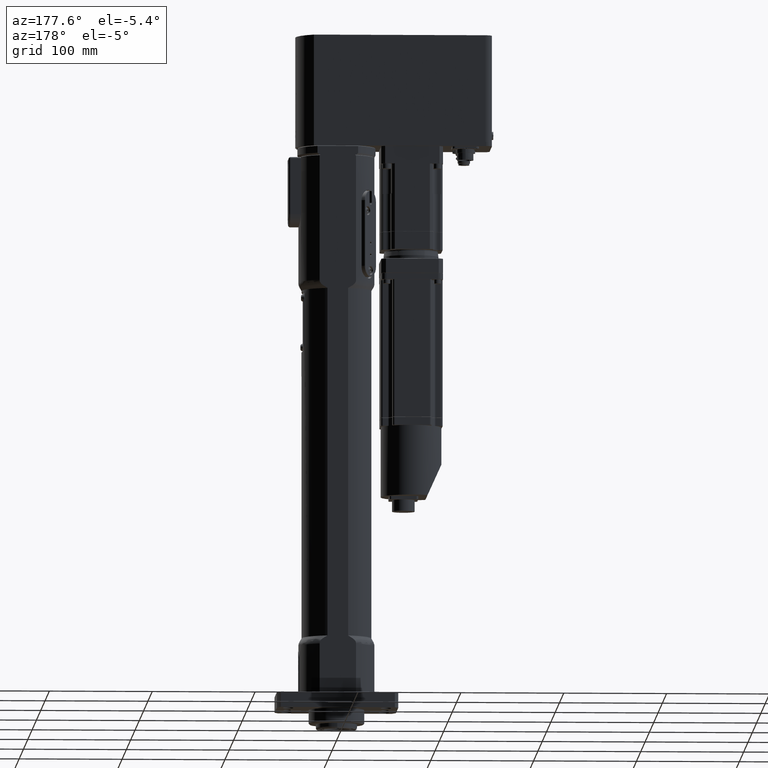
[diagram: clean part render]
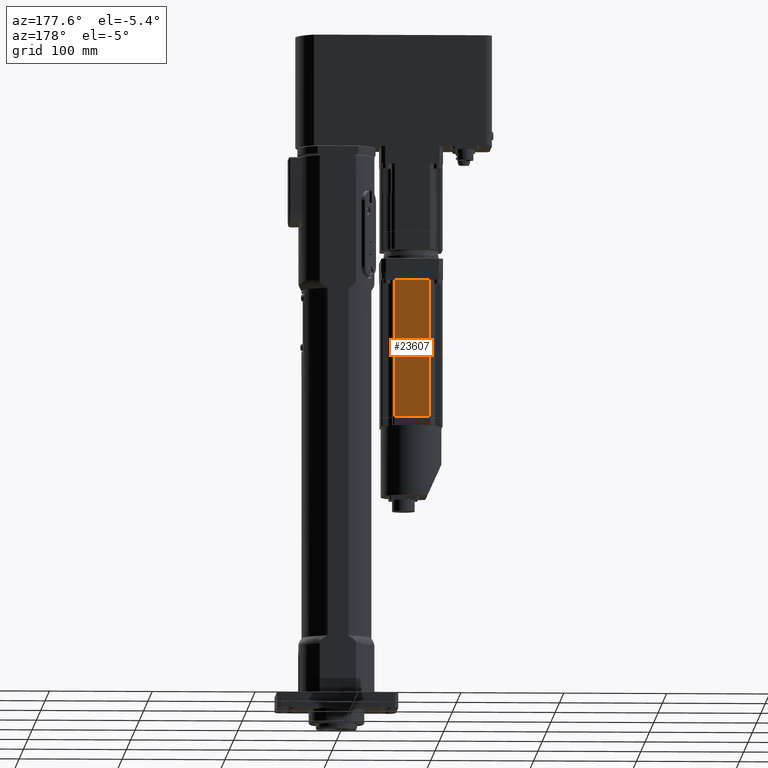
[diagram: same view with one face highlighted and labeled with its STEP entity id]
A machine part, auxiliary view. The second image highlights one B-rep face of the part: STEP entity #23607.
In plain terms, the highlighted planar face has unit normal (0, 1, 0).
Its self-contained STEP definition (entity closure, byte-faithful):
#3510=FACE_OUTER_BOUND('',#4930,.T.);
#4930=EDGE_LOOP('',(#19925,#19926,#19927,#19928));
#6687=LINE('',#45863,#8469);
#6727=LINE('',#45984,#8509);
#6728=LINE('',#45990,#8510);
#6729=LINE('',#45991,#8511);
#8469=VECTOR('',#31063,10.);
#8509=VECTOR('',#31203,10.);
#8510=VECTOR('',#31210,10.);
#8511=VECTOR('',#31211,10.);
#10552=VERTEX_POINT('',#45857);
#10553=VERTEX_POINT('',#45861);
#10584=VERTEX_POINT('',#45983);
#10586=VERTEX_POINT('',#45989);
#13681=EDGE_CURVE('',#10552,#10553,#6687,.T.);
#13741=EDGE_CURVE('',#10584,#10553,#6727,.T.);
#13744=EDGE_CURVE('',#10586,#10552,#6728,.T.);
#13745=EDGE_CURVE('',#10584,#10586,#6729,.T.);
#19925=ORIENTED_EDGE('',*,*,#13681,.F.);
#19926=ORIENTED_EDGE('',*,*,#13744,.F.);
#19927=ORIENTED_EDGE('',*,*,#13745,.F.);
#19928=ORIENTED_EDGE('',*,*,#13741,.T.);
#21130=PLANE('',#25684);
#23607=ADVANCED_FACE('',(#3510),#21130,.T.);
#25684=AXIS2_PLACEMENT_3D('',#45988,#31208,#31209);
#31063=DIRECTION('',(1.,-1.70828439083749E-15,5.40621472491078E-16));
#31203=DIRECTION('',(5.40621472491078E-16,2.47430183379366E-31,-1.));
#31208=DIRECTION('center_axis',(1.70828439083749E-15,1.,1.17096540618745E-30));
#31209=DIRECTION('ref_axis',(1.,-1.70828439083749E-15,5.40621472491078E-16));
#31210=DIRECTION('',(5.40621472491078E-16,2.47430183379366E-31,-1.));
#31211=DIRECTION('',(-1.,1.70828439083749E-15,-5.40621472491078E-16));
#45857=CARTESIAN_POINT('',(-89.5000000000001,30.0000000000001,284.200000000001));
#45861=CARTESIAN_POINT('',(-55.5000000000001,30.0000000000001,284.200000000001));
#45863=CARTESIAN_POINT('',(-81.0000000000001,30.0000000000001,284.200000000001));
#45983=CARTESIAN_POINT('',(-55.5000000000002,30.0000000000001,418.000000000001));
#45984=CARTESIAN_POINT('',(-55.5000000000002,30.0000000000001,418.000000000001));
#45988=CARTESIAN_POINT('Origin',(-89.5000000000002,30.0000000000001,418.000000000001));
#45989=CARTESIAN_POINT('',(-89.5000000000002,30.0000000000001,418.000000000001));
#45990=CARTESIAN_POINT('',(-89.5000000000002,30.0000000000001,418.000000000001));
#45991=CARTESIAN_POINT('',(-55.5000000000002,30.0000000000001,418.000000000001));